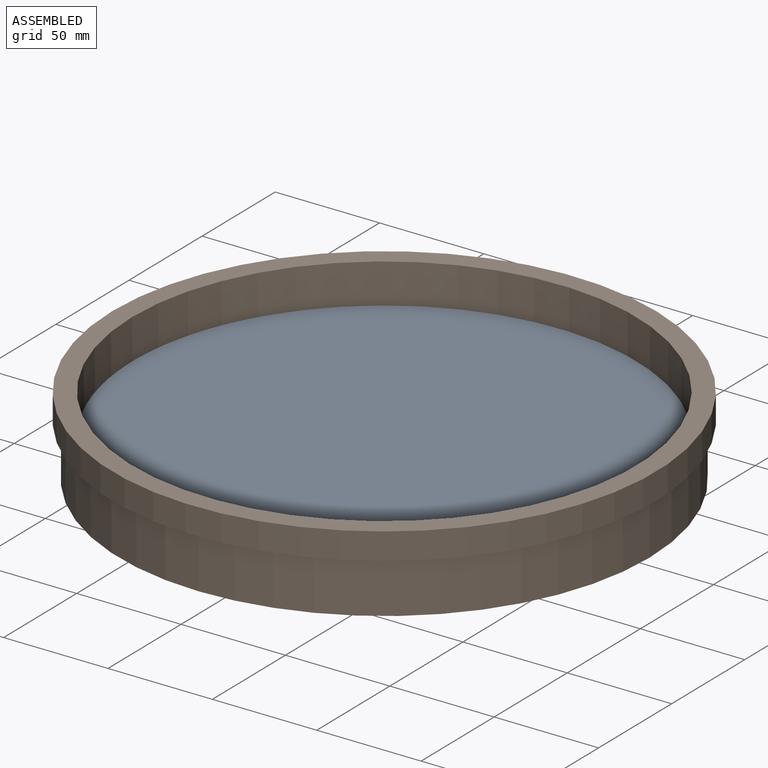
[diagram: assembled view]
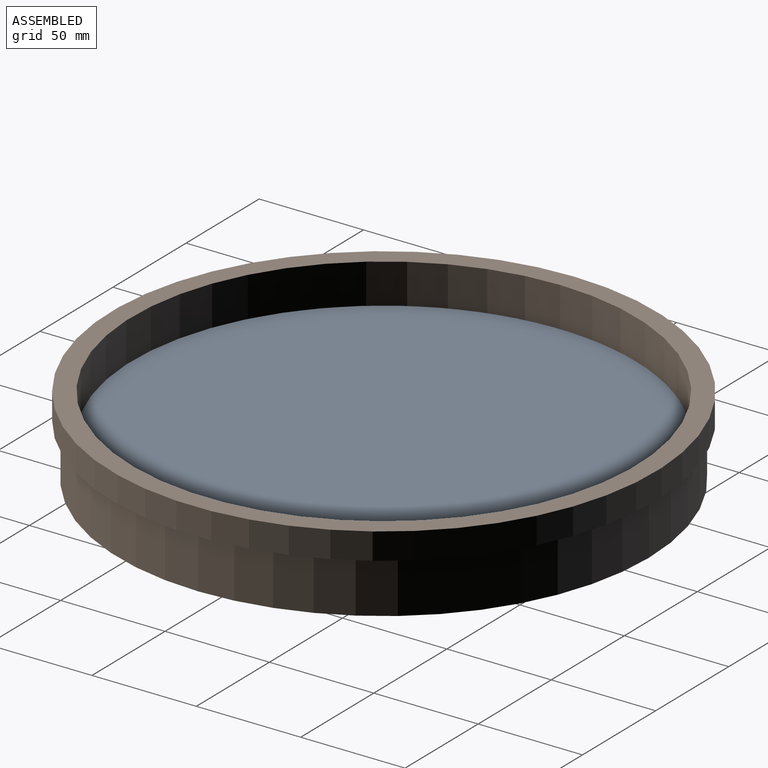
[diagram: assembled view, second angle]
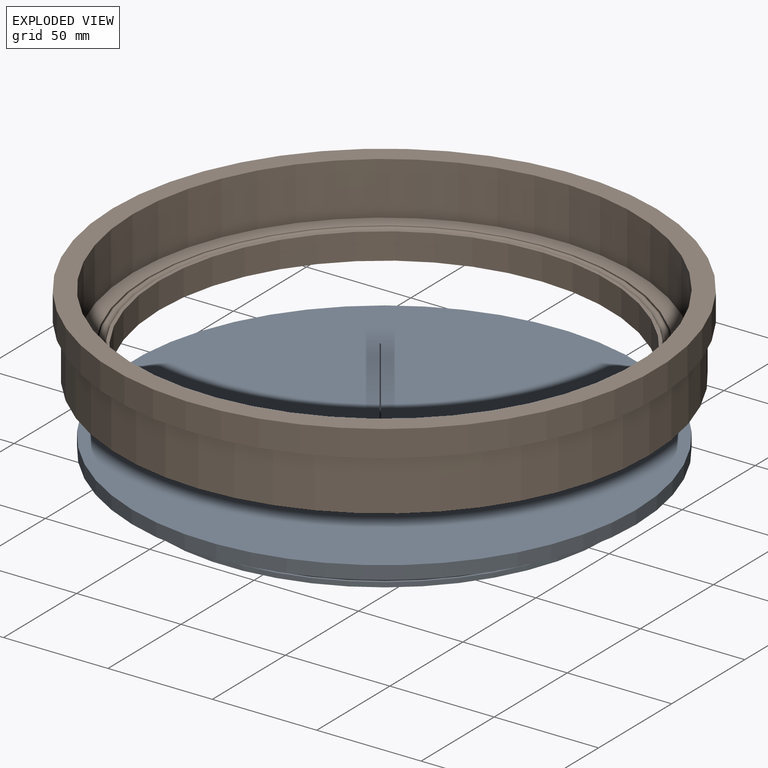
[diagram: exploded view]
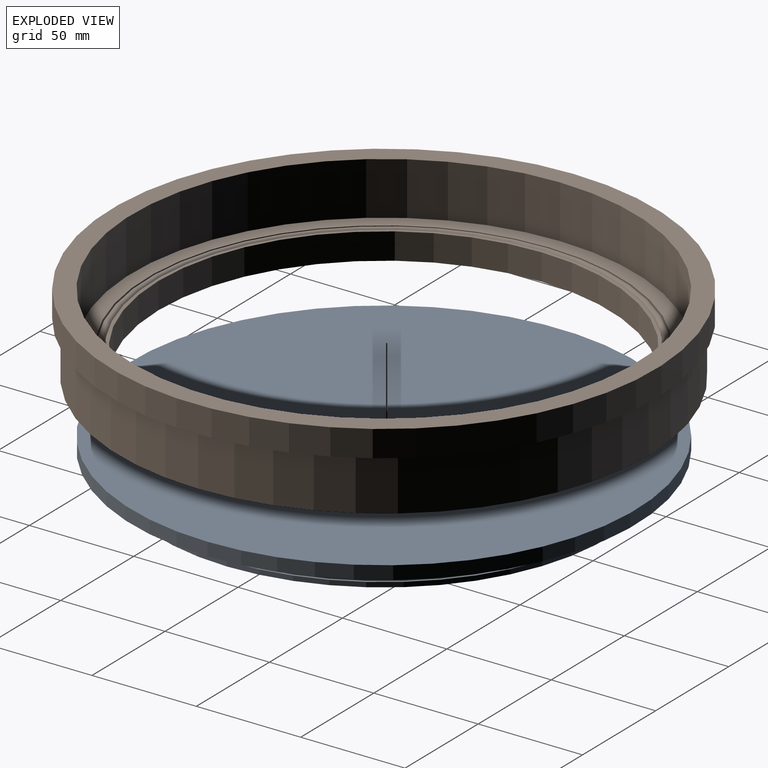
[diagram: exploded view, second angle]
ASSEMBLY  parts=2 mates=2
PART A: 11 faces, bbox 241.3x241.3x15.9 mm
  f0: cylinder r=105.66mm len=211.33mm, axis (0,0,1), area 340.1mm2, adj f1,f10
  f1: torus R=106.43mm, axis (0,0,1), area 4425.7mm2, adj f0,f2
  f2: cylinder r=105.66mm len=211.33mm, axis (0,0,1), area 340.1mm2, adj f1,f3
  f3: plane 214.38x214.38mm, normal (0,0,-1), area 1019.1mm2, adj f2,f4
  f4: cylinder r=107.19mm len=214.38mm, axis (0,0,1), area 2309.4mm2, adj f3,f5
  f5: plane 241.3x241.3mm, normal (0,0,-1), area 9635.8mm2, adj f4,f6
  f6: cylinder r=120.65mm len=241.3mm, axis (0,0,1), area 4813.7mm2, adj f5,f7
  f7: plane 241.3x241.3mm, normal (0,0,1), area 45730.3mm2, adj f6
  f8: plane 214.38x214.38mm, normal (0,0,-1), area 36094.6mm2, adj f9
  f9: cylinder r=107.19mm len=214.38mm, axis (0,0,1), area 1539.6mm2, adj f8,f10
  f10: plane 214.38x214.38mm, normal (0,0,1), area 1019.1mm2, adj f0,f9
PART B: 14 faces, bbox 260.4x260.4x38.1 mm
  f0: plane 226.7x226.7mm, normal (0,0,1), area 570.1mm2, adj f1,f13
  f1: torus R=111.44mm, axis (0,0,-1), area 5279.2mm2, adj f0,f2
  f2: plane 220.68x220.68mm, normal (0,0,1), area 554.9mm2, adj f1,f3
  f3: cylinder r=109.54mm len=219.08mm, axis (0,0,-1), area 1573.3mm2, adj f2,f4
  f4: plane 219.08x219.08mm, normal (0,0,1), area 1084.7mm2, adj f3,f5
  f5: cylinder r=107.95mm len=215.9mm, axis (0,0,-1), area 8614mm2, adj f4,f6
  f6: plane 254x254mm, normal (0,0,-1), area 14061.1mm2, adj f5,f7
  f7: cylinder r=127mm len=254mm, axis (0,0,-1), area 20268.3mm2, adj f6,f8
  f8: plane 260.35x260.35mm, normal (0,0,-1), area 2565.2mm2, adj f7,f9
  f9: cylinder r=130.18mm len=260.35mm, axis (0,0,-1), area 10387.5mm2, adj f8,f10
  f10: plane 260.35x260.35mm, normal (0,0,1), area 7505.6mm2, adj f9,f11
  f11: cylinder r=120.65mm len=241.3mm, axis (0,0,-1), area 19254.9mm2, adj f10,f12
  f12: plane 241.3x241.3mm, normal (0,0,1), area 5368.2mm2, adj f11,f13
  f13: cylinder r=113.35mm len=226.7mm, axis (0,0,-1), area 1628.1mm2, adj f0,f12
PLACE A t=(-55.05,46.25,98.3)mm
PLACE B t=(-55.05,46.25,95.13)mm
MATE planar A.f0 <-> B.f1  axis (0,0,-1) through (-55.05,46.25,107.83)mm
MATE cylindrical B.f1 <-> A.f0  axis (0,0,1) through (-55.05,46.25,107.83)mm
